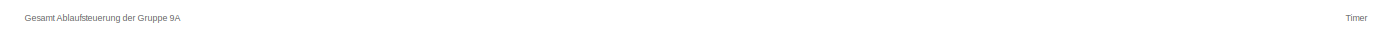
[diagram: root canvas - part 1/4, top left region]
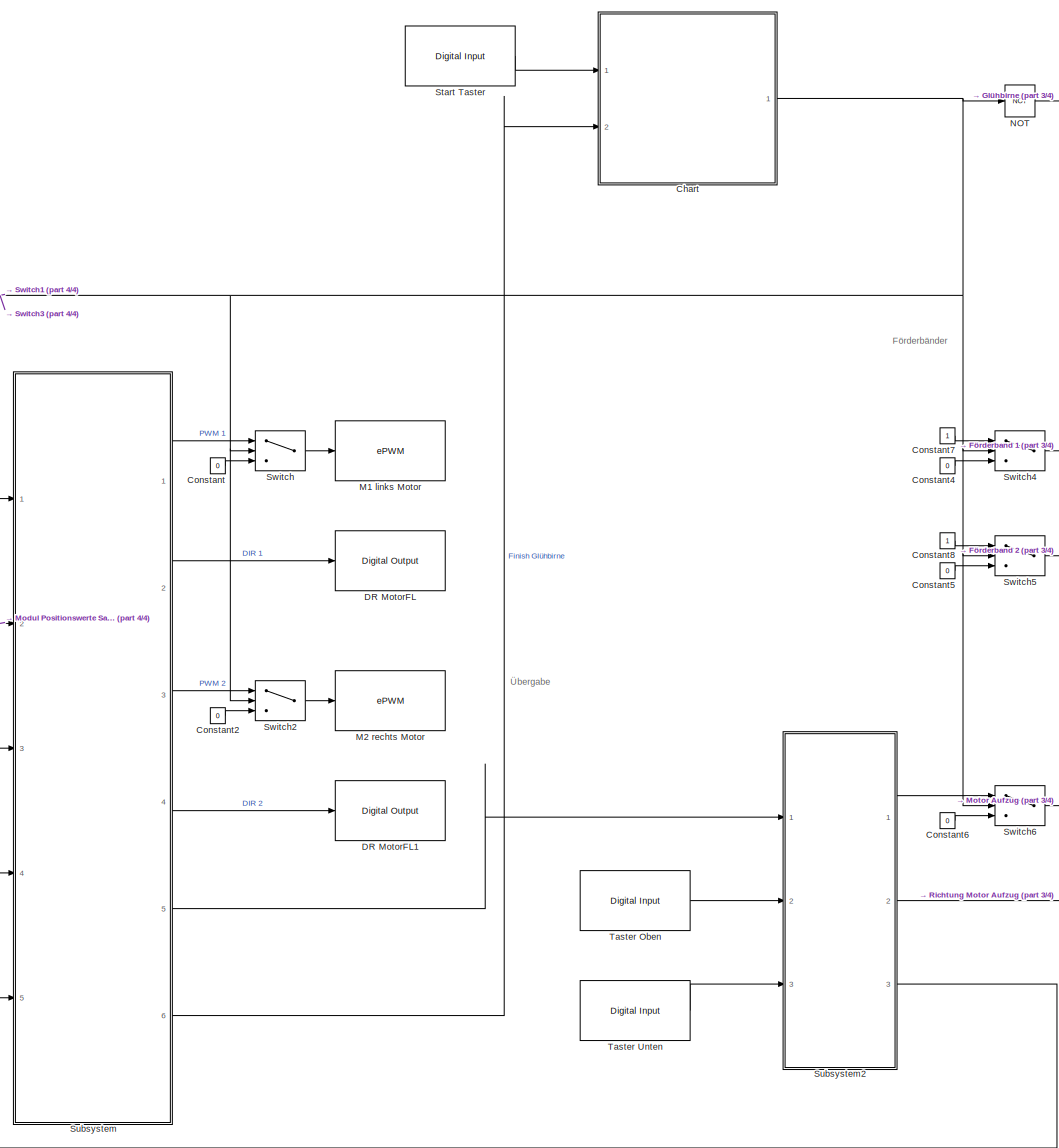
[diagram: root canvas - part 2/4, right side, full height]
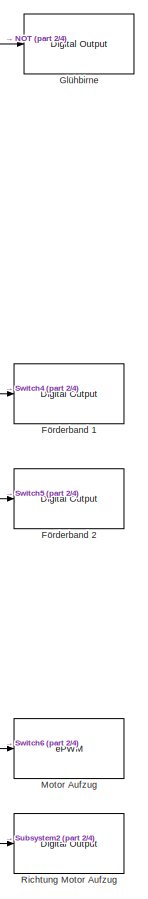
[diagram: root canvas - part 3/4, middle right region]
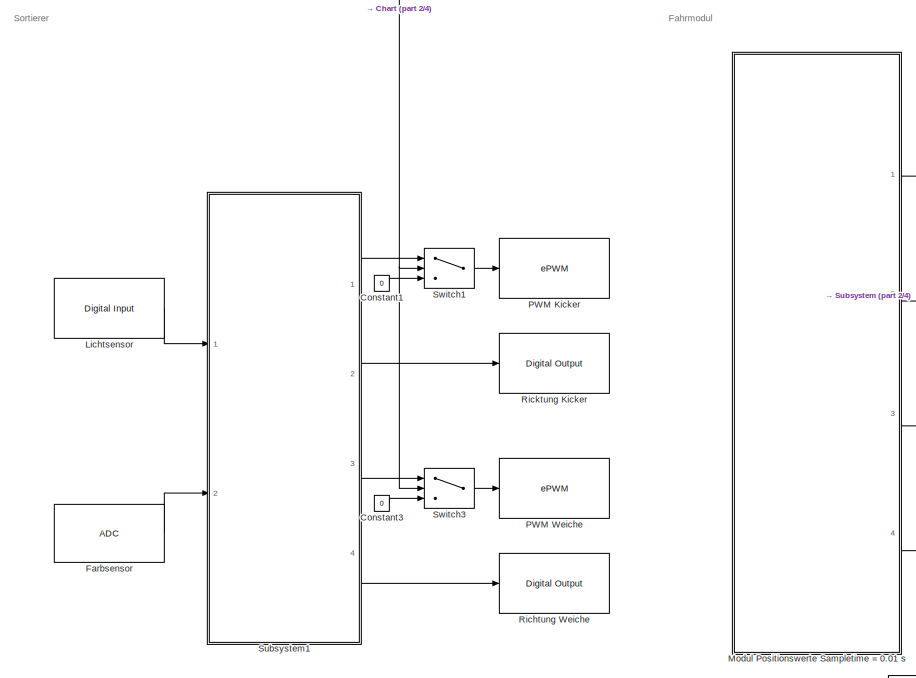
[diagram: root canvas - part 4/4, middle left region]
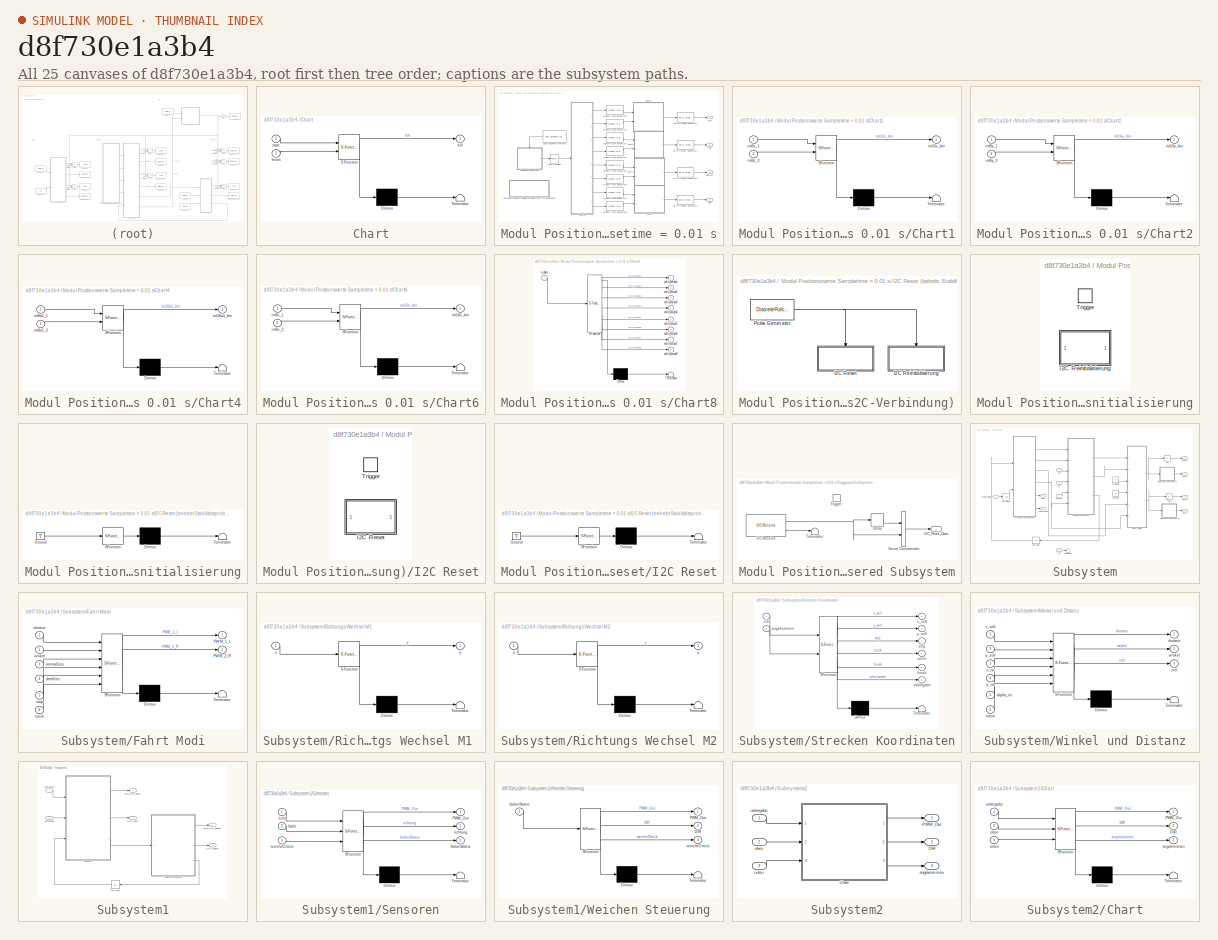
[diagram: thumbnail index - all 25 canvases of the model, root first then tree order]
MODEL slx_d8f730e1a3b4
KIND model
CONFIG AbsTol = auto
CONFIG EnableMultiTasking = on
CONFIG FixedStep = auto
CONFIG MaxStep = auto
CONFIG MinStep = auto
CONFIG RelTol = 1e-3
CONFIG SampleTimeConstraint = Unconstrained
CONFIG Solver = FixedStepDiscrete
CONFIG SolverName = FixedStepDiscrete
CONFIG StartTime = 0.0
CONFIG StopTime = 10.0
BLOCK [SubSystem] Chart
  ErrorFcn = Stateflow.Translate.translate
  PermitHierarchicalResolution = ExplicitOnly
  Ports = [2, 1]
  RequestExecContextInheritance = off
  SFBlockType = Chart
  TreatAsAtomicUnit = on
BLOCK [Demux] Chart/ Demux 
  Outputs = 1
  Ports = [1, 1]
BLOCK [S-Function] Chart/ SFunction 
  EnableBusSupport = on
  FunctionName = sf_sfun
  PortCounts = [2 2]
  Ports = [2, 2]
  SFcnIsStateOwnerBlock = off
  SFunctionDeploymentMode = off
  Tag = Stateflow S-Function MSupGesamt 3
BLOCK [Terminator] Chart/ Terminator 
BLOCK [Inport] Chart/finish
  IconDisplay = Port number
  Port = 2
BLOCK [Outport] Chart/kill
  IconDisplay = Port number
BLOCK [Inport] Chart/start
  IconDisplay = Port number
BLOCK [Constant] Constant
  Value = 0
BLOCK [Constant] Constant1
  Value = 0
BLOCK [Constant] Constant2
  Value = 0
BLOCK [Constant] Constant3
  Value = 0
BLOCK [Constant] Constant4
  Value = 0
BLOCK [Constant] Constant5
  Value = 0
BLOCK [Constant] Constant6
  Value = 0
BLOCK [Constant] Constant7
BLOCK [Constant] Constant8
BLOCK [Reference] DR MotorFL  REF=c2833xlib/Digital Output
  Ports = [1]
  SourceBlock = c2833xlib/Digital Output
  SourceProductBaseCode = TIC2000
  SourceProductName = Embedded Coder Support Package for Texas Instruments C2000 Processors
  SourceType = C2833x GPIO Digital Output
  UserDataPersistent = on
BLOCK [Reference] DR MotorFL1  REF=c2833xlib/Digital Output
  Ports = [1]
  SourceBlock = c2833xlib/Digital Output
  SourceProductBaseCode = TIC2000
  SourceProductName = Embedded Coder Support Package for Texas Instruments C2000 Processors
  SourceType = C2833x GPIO Digital Output
  UserDataPersistent = on
BLOCK [Reference] Farbsensor  REF=c280xlib/ADC
  Ports = [0, 1]
  SourceBlock = c280xlib/ADC
  SourceProductBaseCode = TIC2000
  SourceProductName = Embedded Coder Support Package for Texas Instruments C2000 Processors
  SourceType = C280x/C2833x ADC
  UserDataPersistent = on
BLOCK [Reference] Förderband 1  REF=c2833xlib/Digital Output
  Ports = [1]
  SourceBlock = c2833xlib/Digital Output
  SourceProductBaseCode = TIC2000
  SourceProductName = Embedded Coder Support Package for Texas Instruments C2000 Processors
  SourceType = C2833x GPIO Digital Output
  UserDataPersistent = on
BLOCK [Reference] Förderband 2  REF=c2833xlib/Digital Output
  Ports = [1]
  SourceBlock = c2833xlib/Digital Output
  SourceProductBaseCode = TIC2000
  SourceProductName = Embedded Coder Support Package for Texas Instruments C2000 Processors
  SourceType = C2833x GPIO Digital Output
  UserDataPersistent = on
BLOCK [Reference] Glühbirne  REF=c2833xlib/Digital Output
  Ports = [1]
  SourceBlock = c2833xlib/Digital Output
  SourceProductBaseCode = TIC2000
  SourceProductName = Embedded Coder Support Package for Texas Instruments C2000 Processors
  SourceType = C2833x GPIO Digital Output
  UserDataPersistent = on
BLOCK [Reference] Lichtsensor  REF=c280xlib/Digital Input
  Ports = [0, 1]
  SourceBlock = c280xlib/Digital Input
  SourceProductBaseCode = TIC2000
  SourceProductName = Embedded Coder Support Package for Texas Instruments C2000 Processors
  SourceType = C280x GPIO Digital Input
  UserDataPersistent = on
BLOCK [Reference] M1 links Motor  REF=c280xlib/ePWM
  Ports = [1]
  SourceBlock = c280xlib/ePWM
  SourceProductBaseCode = TIC2000
  SourceProductName = Embedded Coder Support Package for Texas Instruments C2000 Processors
  SourceType = C280x/C2833x ePWM
BLOCK [Reference] M2 rechts Motor  REF=c280xlib/ePWM
  Ports = [1]
  SourceBlock = c280xlib/ePWM
  SourceProductBaseCode = TIC2000
  SourceProductName = Embedded Coder Support Package for Texas Instruments C2000 Processors
  SourceType = C280x/C2833x ePWM
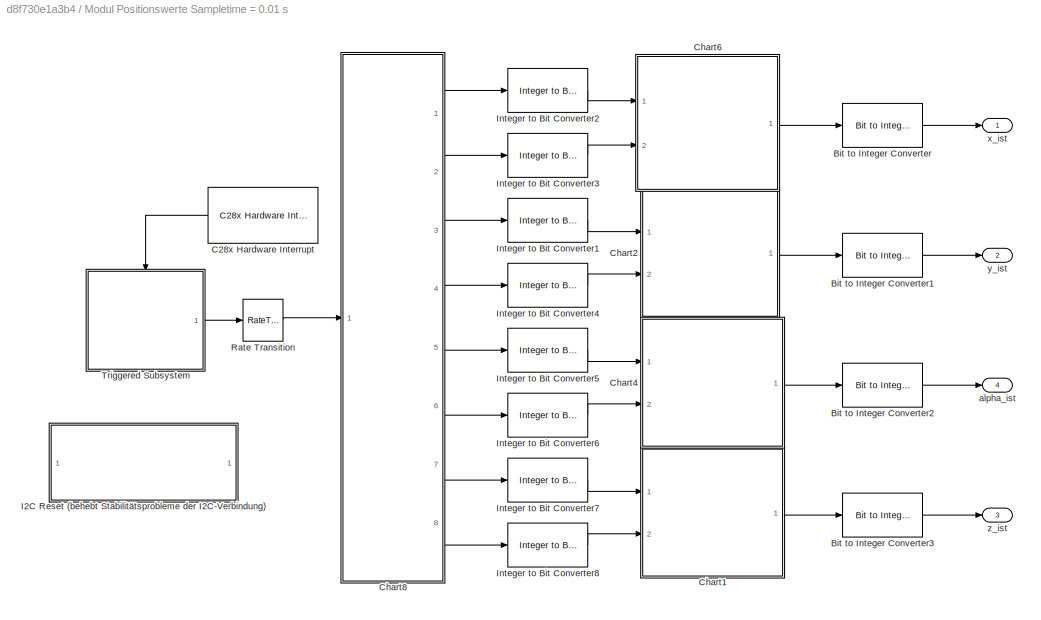
BLOCK [SubSystem] Modul Positionswerte Sampletime = 0.01 s
  Ports = [0, 4]
  RequestExecContextInheritance = off
BLOCK [Reference] Modul Positionswerte Sampletime = 0.01 s/Bit to Integer Converter  REF=commutil2/Bit to Integer
Converter
  Ports = [1, 1]
  SourceBlock = commutil2/Bit to Integer\nConverter
  SourceProductBaseCode = CM
  SourceProductName = Communications Toolbox
  SourceType = Bit to Integer Converter
BLOCK [Reference] Modul Positionswerte Sampletime = 0.01 s/Bit to Integer Converter1  REF=commutil2/Bit to Integer
Converter
  Ports = [1, 1]
  SourceBlock = commutil2/Bit to Integer\nConverter
  SourceProductBaseCode = CM
  SourceProductName = Communications Toolbox
  SourceType = Bit to Integer Converter
BLOCK [Reference] Modul Positionswerte Sampletime = 0.01 s/Bit to Integer Converter2  REF=commutil2/Bit to Integer
Converter
  Ports = [1, 1]
  SourceBlock = commutil2/Bit to Integer\nConverter
  SourceProductBaseCode = CM
  SourceProductName = Communications Toolbox
  SourceType = Bit to Integer Converter
BLOCK [Reference] Modul Positionswerte Sampletime = 0.01 s/Bit to Integer Converter3  REF=commutil2/Bit to Integer
Converter
  Ports = [1, 1]
  SourceBlock = commutil2/Bit to Integer\nConverter
  SourceProductBaseCode = CM
  SourceProductName = Communications Toolbox
  SourceType = Bit to Integer Converter
BLOCK [Reference] Modul Positionswerte Sampletime = 0.01 s/C28x Hardware Interrupt  REF=c2000lib/Scheduling/C28x Hardware Interrupt
  Ports = [0, 1]
  SourceBlock = c2000lib/Scheduling/C28x Hardware Interrupt
  SourceProductBaseCode = TIC2000
  SourceProductName = Embedded Coder Support Package for Texas Instruments C2000 Processors
  SourceType = C28x Interrupt Block
BLOCK [SubSystem] Modul Positionswerte Sampletime = 0.01 s/Chart1
  ErrorFcn = Stateflow.Translate.translate
  PermitHierarchicalResolution = ExplicitOnly
  Ports = [2, 1]
  RequestExecContextInheritance = off
  SFBlockType = Chart
  TreatAsAtomicUnit = on
BLOCK [Demux] Modul Positionswerte Sampletime = 0.01 s/Chart1/ Demux 
  Outputs = 1
  Ports = [1, 1]
BLOCK [S-Function] Modul Positionswerte Sampletime = 0.01 s/Chart1/ SFunction 
  EnableBusSupport = on
  FunctionName = sf_sfun
  PortCounts = [2 2]
  Ports = [2, 2]
  SFcnIsStateOwnerBlock = off
  SFunctionDeploymentMode = off
  Tag = Stateflow S-Function MSupGesamt 11
BLOCK [Terminator] Modul Positionswerte Sampletime = 0.01 s/Chart1/ Terminator 
BLOCK [Outport] Modul Positionswerte Sampletime = 0.01 s/Chart1/int16z_bin
  IconDisplay = Port number
BLOCK [Inport] Modul Positionswerte Sampletime = 0.01 s/Chart1/int8z_1
  IconDisplay = Port number
BLOCK [Inport] Modul Positionswerte Sampletime = 0.01 s/Chart1/int8z_2
  IconDisplay = Port number
  Port = 2
BLOCK [SubSystem] Modul Positionswerte Sampletime = 0.01 s/Chart2
  ErrorFcn = Stateflow.Translate.translate
  PermitHierarchicalResolution = ExplicitOnly
  Ports = [2, 1]
  RequestExecContextInheritance = off
  SFBlockType = Chart
  TreatAsAtomicUnit = on
BLOCK [Demux] Modul Positionswerte Sampletime = 0.01 s/Chart2/ Demux 
  Outputs = 1
  Ports = [1, 1]
BLOCK [S-Function] Modul Positionswerte Sampletime = 0.01 s/Chart2/ SFunction 
  EnableBusSupport = on
  FunctionName = sf_sfun
  PortCounts = [2 2]
  Ports = [2, 2]
  SFcnIsStateOwnerBlock = off
  SFunctionDeploymentMode = off
  Tag = Stateflow S-Function MSupGesamt 13
BLOCK [Terminator] Modul Positionswerte Sampletime = 0.01 s/Chart2/ Terminator 
BLOCK [Outport] Modul Positionswerte Sampletime = 0.01 s/Chart2/int16y_bin
  IconDisplay = Port number
BLOCK [Inport] Modul Positionswerte Sampletime = 0.01 s/Chart2/int8y_1
  IconDisplay = Port number
BLOCK [Inport] Modul Positionswerte Sampletime = 0.01 s/Chart2/int8y_2
  IconDisplay = Port number
  Port = 2
BLOCK [SubSystem] Modul Positionswerte Sampletime = 0.01 s/Chart4
  ErrorFcn = Stateflow.Translate.translate
  PermitHierarchicalResolution = ExplicitOnly
  Ports = [2, 1]
  RequestExecContextInheritance = off
  SFBlockType = Chart
  TreatAsAtomicUnit = on
BLOCK [Demux] Modul Positionswerte Sampletime = 0.01 s/Chart4/ Demux 
  Outputs = 1
  Ports = [1, 1]
BLOCK [S-Function] Modul Positionswerte Sampletime = 0.01 s/Chart4/ SFunction 
  EnableBusSupport = on
  FunctionName = sf_sfun
  PortCounts = [2 2]
  Ports = [2, 2]
  SFcnIsStateOwnerBlock = off
  SFunctionDeploymentMode = off
  Tag = Stateflow S-Function MSupGesamt 14
BLOCK [Terminator] Modul Positionswerte Sampletime = 0.01 s/Chart4/ Terminator 
BLOCK [Outport] Modul Positionswerte Sampletime = 0.01 s/Chart4/int16a1_bin
  IconDisplay = Port number
BLOCK [Inport] Modul Positionswerte Sampletime = 0.01 s/Chart4/int8a1_1
  IconDisplay = Port number
BLOCK [Inport] Modul Positionswerte Sampletime = 0.01 s/Chart4/int8a1_2
  IconDisplay = Port number
  Port = 2
BLOCK [SubSystem] Modul Positionswerte Sampletime = 0.01 s/Chart6
  ErrorFcn = Stateflow.Translate.translate
  PermitHierarchicalResolution = ExplicitOnly
  Ports = [2, 1]
  RequestExecContextInheritance = off
  SFBlockType = Chart
  TreatAsAtomicUnit = on
BLOCK [Demux] Modul Positionswerte Sampletime = 0.01 s/Chart6/ Demux 
  Outputs = 1
  Ports = [1, 1]
BLOCK [S-Function] Modul Positionswerte Sampletime = 0.01 s/Chart6/ SFunction 
  EnableBusSupport = on
  FunctionName = sf_sfun
  PortCounts = [2 2]
  Ports = [2, 2]
  SFcnIsStateOwnerBlock = off
  SFunctionDeploymentMode = off
  Tag = Stateflow S-Function MSupGesamt 16
BLOCK [Terminator] Modul Positionswerte Sampletime = 0.01 s/Chart6/ Terminator 
BLOCK [Outport] Modul Positionswerte Sampletime = 0.01 s/Chart6/int16x_bin
  IconDisplay = Port number
BLOCK [Inport] Modul Positionswerte Sampletime = 0.01 s/Chart6/int8x_1
  IconDisplay = Port number
BLOCK [Inport] Modul Positionswerte Sampletime = 0.01 s/Chart6/int8x_2
  IconDisplay = Port number
  Port = 2
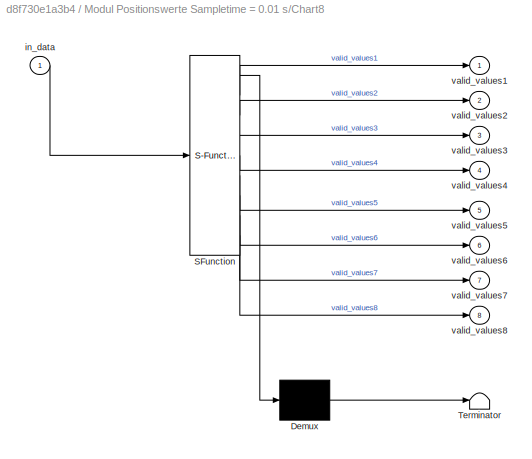
BLOCK [SubSystem] Modul Positionswerte Sampletime = 0.01 s/Chart8
  ErrorFcn = Stateflow.Translate.translate
  PermitHierarchicalResolution = ExplicitOnly
  Ports = [1, 8]
  RequestExecContextInheritance = off
  SFBlockType = Chart
  TreatAsAtomicUnit = on
BLOCK [Demux] Modul Positionswerte Sampletime = 0.01 s/Chart8/ Demux 
  Outputs = 1
  Ports = [1, 1]
BLOCK [S-Function] Modul Positionswerte Sampletime = 0.01 s/Chart8/ SFunction 
  EnableBusSupport = on
  FunctionName = sf_sfun
  PortCounts = [1 9]
  Ports = [1, 9]
  SFcnIsStateOwnerBlock = off
  SFunctionDeploymentMode = off
  Tag = Stateflow S-Function MSupGesamt 17
BLOCK [Terminator] Modul Positionswerte Sampletime = 0.01 s/Chart8/ Terminator 
BLOCK [Inport] Modul Positionswerte Sampletime = 0.01 s/Chart8/in_data
  IconDisplay = Port number
BLOCK [Outport] Modul Positionswerte Sampletime = 0.01 s/Chart8/valid_values1
  IconDisplay = Port number
BLOCK [Outport] Modul Positionswerte Sampletime = 0.01 s/Chart8/valid_values2
  IconDisplay = Port number
  Port = 2
BLOCK [Outport] Modul Positionswerte Sampletime = 0.01 s/Chart8/valid_values3
  IconDisplay = Port number
  Port = 3
BLOCK [Outport] Modul Positionswerte Sampletime = 0.01 s/Chart8/valid_values4
  IconDisplay = Port number
  Port = 4
BLOCK [Outport] Modul Positionswerte Sampletime = 0.01 s/Chart8/valid_values5
  IconDisplay = Port number
  Port = 5
BLOCK [Outport] Modul Positionswerte Sampletime = 0.01 s/Chart8/valid_values6
  IconDisplay = Port number
  Port = 6
BLOCK [Outport] Modul Positionswerte Sampletime = 0.01 s/Chart8/valid_values7
  IconDisplay = Port number
  Port = 7
BLOCK [Outport] Modul Positionswerte Sampletime = 0.01 s/Chart8/valid_values8
  IconDisplay = Port number
  Port = 8
BLOCK [SubSystem] Modul Positionswerte Sampletime = 0.01 s/I2C Reset (behebt Stabilitätsprobleme der I2C-Verbindung)
  Ports = []
  RequestExecContextInheritance = off
BLOCK [SubSystem] Modul Positionswerte Sampletime = 0.01 s/I2C Reset (behebt Stabilitätsprobleme der I2C-Verbindung)/I2C Reinitialisierung
  Ports = [0, 0, 0, 1]
  RequestExecContextInheritance = off
  TreatAsAtomicUnit = on
BLOCK [SubSystem] Modul Positionswerte Sampletime = 0.01 s/I2C Reset (behebt Stabilitätsprobleme der I2C-Verbindung)/I2C Reinitialisierung/I2C Reinitialisierung
  ErrorFcn = Stateflow.Translate.translate
  PermitHierarchicalResolution = ExplicitOnly
  Ports = []
  RequestExecContextInheritance = off
  SFBlockType = MATLAB Function
  TreatAsAtomicUnit = on
BLOCK [Demux] Modul Positionswerte Sampletime = 0.01 s/I2C Reset (behebt Stabilitätsprobleme der I2C-Verbindung)/I2C Reinitialisierung/I2C Reinitialisierung/ Demux 
  Outputs = 1
  Ports = [1, 1]
BLOCK [Ground] Modul Positionswerte Sampletime = 0.01 s/I2C Reset (behebt Stabilitätsprobleme der I2C-Verbindung)/I2C Reinitialisierung/I2C Reinitialisierung/ Ground 
BLOCK [S-Function] Modul Positionswerte Sampletime = 0.01 s/I2C Reset (behebt Stabilitätsprobleme der I2C-Verbindung)/I2C Reinitialisierung/I2C Reinitialisierung/ SFunction 
  EnableBusSupport = on
  FunctionName = sf_sfun
  PortCounts = [1 1]
  Ports = [1, 1]
  SFcnIsStateOwnerBlock = off
  SFunctionDeploymentMode = off
  Tag = Stateflow S-Function MSupGesamt 24
BLOCK [Terminator] Modul Positionswerte Sampletime = 0.01 s/I2C Reset (behebt Stabilitätsprobleme der I2C-Verbindung)/I2C Reinitialisierung/I2C Reinitialisierung/ Terminator 
BLOCK [TriggerPort] Modul Positionswerte Sampletime = 0.01 s/I2C Reset (behebt Stabilitätsprobleme der I2C-Verbindung)/I2C Reinitialisierung/Trigger
  Ports = []
  StatesWhenEnabling = held
  TriggerType = falling
  VariantControl = (inherit)
BLOCK [SubSystem] Modul Positionswerte Sampletime = 0.01 s/I2C Reset (behebt Stabilitätsprobleme der I2C-Verbindung)/I2C Reset
  Ports = [0, 0, 0, 1]
  RequestExecContextInheritance = off
  TreatAsAtomicUnit = on
BLOCK [SubSystem] Modul Positionswerte Sampletime = 0.01 s/I2C Reset (behebt Stabilitätsprobleme der I2C-Verbindung)/I2C Reset/I2C Reset
  ErrorFcn = Stateflow.Translate.translate
  PermitHierarchicalResolution = ExplicitOnly
  Ports = []
  RequestExecContextInheritance = off
  SFBlockType = MATLAB Function
  TreatAsAtomicUnit = on
BLOCK [Demux] Modul Positionswerte Sampletime = 0.01 s/I2C Reset (behebt Stabilitätsprobleme der I2C-Verbindung)/I2C Reset/I2C Reset/ Demux 
  Outputs = 1
  Ports = [1, 1]
BLOCK [Ground] Modul Positionswerte Sampletime = 0.01 s/I2C Reset (behebt Stabilitätsprobleme der I2C-Verbindung)/I2C Reset/I2C Reset/ Ground 
BLOCK [S-Function] Modul Positionswerte Sampletime = 0.01 s/I2C Reset (behebt Stabilitätsprobleme der I2C-Verbindung)/I2C Reset/I2C Reset/ SFunction 
  EnableBusSupport = on
  FunctionName = sf_sfun
  PortCounts = [1 1]
  Ports = [1, 1]
  SFcnIsStateOwnerBlock = off
  SFunctionDeploymentMode = off
  Tag = Stateflow S-Function MSupGesamt 21
BLOCK [Terminator] Modul Positionswerte Sampletime = 0.01 s/I2C Reset (behebt Stabilitätsprobleme der I2C-Verbindung)/I2C Reset/I2C Reset/ Terminator 
BLOCK [TriggerPort] Modul Positionswerte Sampletime = 0.01 s/I2C Reset (behebt Stabilitätsprobleme der I2C-Verbindung)/I2C Reset/Trigger
  Ports = []
  StatesWhenEnabling = held
  VariantControl = (inherit)
BLOCK [DiscretePulseGenerator] Modul Positionswerte Sampletime = 0.01 s/I2C Reset (behebt Stabilitätsprobleme der I2C-Verbindung)/Pulse Generator
  Period = 250
  Ports = [0, 1]
  SampleTime = 0.01
BLOCK [Reference] Modul Positionswerte Sampletime = 0.01 s/Integer to Bit Converter1  REF=commutil2/Integer to Bit
Converter
  Ports = [1, 1]
  SourceBlock = commutil2/Integer to Bit\nConverter
  SourceProductBaseCode = CM
  SourceProductName = Communications Toolbox
  SourceType = Integer to Bit Converter
BLOCK [Reference] Modul Positionswerte Sampletime = 0.01 s/Integer to Bit Converter2  REF=commutil2/Integer to Bit
Converter
  Ports = [1, 1]
  SourceBlock = commutil2/Integer to Bit\nConverter
  SourceProductBaseCode = CM
  SourceProductName = Communications Toolbox
  SourceType = Integer to Bit Converter
BLOCK [Reference] Modul Positionswerte Sampletime = 0.01 s/Integer to Bit Converter3  REF=commutil2/Integer to Bit
Converter
  Ports = [1, 1]
  SourceBlock = commutil2/Integer to Bit\nConverter
  SourceProductBaseCode = CM
  SourceProductName = Communications Toolbox
  SourceType = Integer to Bit Converter
BLOCK [Reference] Modul Positionswerte Sampletime = 0.01 s/Integer to Bit Converter4  REF=commutil2/Integer to Bit
Converter
  Ports = [1, 1]
  SourceBlock = commutil2/Integer to Bit\nConverter
  SourceProductBaseCode = CM
  SourceProductName = Communications Toolbox
  SourceType = Integer to Bit Converter
BLOCK [Reference] Modul Positionswerte Sampletime = 0.01 s/Integer to Bit Converter5  REF=commutil2/Integer to Bit
Converter
  Ports = [1, 1]
  SourceBlock = commutil2/Integer to Bit\nConverter
  SourceProductBaseCode = CM
  SourceProductName = Communications Toolbox
  SourceType = Integer to Bit Converter
BLOCK [Reference] Modul Positionswerte Sampletime = 0.01 s/Integer to Bit Converter6  REF=commutil2/Integer to Bit
Converter
  Ports = [1, 1]
  SourceBlock = commutil2/Integer to Bit\nConverter
  SourceProductBaseCode = CM
  SourceProductName = Communications Toolbox
  SourceType = Integer to Bit Converter
BLOCK [Reference] Modul Positionswerte Sampletime = 0.01 s/Integer to Bit Converter7  REF=commutil2/Integer to Bit
Converter
  Ports = [1, 1]
  SourceBlock = commutil2/Integer to Bit\nConverter
  SourceProductBaseCode = CM
  SourceProductName = Communications Toolbox
  SourceType = Integer to Bit Converter
BLOCK [Reference] Modul Positionswerte Sampletime = 0.01 s/Integer to Bit Converter8  REF=commutil2/Integer to Bit
Converter
  Ports = [1, 1]
  SourceBlock = commutil2/Integer to Bit\nConverter
  SourceProductBaseCode = CM
  SourceProductName = Communications Toolbox
  SourceType = Integer to Bit Converter
BLOCK [RateTransition] Modul Positionswerte Sampletime = 0.01 s/Rate Transition
  Deterministic = off
  OutPortSampleTime = 0.01
BLOCK [SubSystem] Modul Positionswerte Sampletime = 0.01 s/Triggered Subsystem
  Ports = [0, 1, 0, 1]
  RequestExecContextInheritance = off
  TreatAsAtomicUnit = on
BLOCK [Delay] Modul Positionswerte Sampletime = 0.01 s/Triggered Subsystem/Delay
  DelayLength = 1
  InitialCondition = 0
  InputPortMap = u0
  Ports = [1, 1]
BLOCK [Reference] Modul Positionswerte Sampletime = 0.01 s/Triggered Subsystem/I2C Receive  REF=c280xlib/I2C Receive
  Ports = [0, 2]
  SourceBlock = c280xlib/I2C Receive
  SourceProductBaseCode = TIC2000
  SourceProductName = Embedded Coder Support Package for Texas Instruments C2000 Processors
  SourceType = C28x I2C Receive
BLOCK [Outport] Modul Positionswerte Sampletime = 0.01 s/Triggered Subsystem/I2C_Read_Data
  IconDisplay = Port number
BLOCK [Terminator] Modul Positionswerte Sampletime = 0.01 s/Triggered Subsystem/Terminator
BLOCK [TriggerPort] Modul Positionswerte Sampletime = 0.01 s/Triggered Subsystem/Trigger
  Ports = []
  StatesWhenEnabling = held
  TriggerType = function-call
  VariantControl = (inherit)
BLOCK [Concatenate] Modul Positionswerte Sampletime = 0.01 s/Triggered Subsystem/Vector Concatenate
  Ports = [2, 1]
BLOCK [Outport] Modul Positionswerte Sampletime = 0.01 s/alpha_ist
  IconDisplay = Port number
  Port = 4
BLOCK [Outport] Modul Positionswerte Sampletime = 0.01 s/x_ist
  IconDisplay = Port number
BLOCK [Outport] Modul Positionswerte Sampletime = 0.01 s/y_ist
  IconDisplay = Port number
  Port = 2
BLOCK [Outport] Modul Positionswerte Sampletime = 0.01 s/z_ist
  IconDisplay = Port number
  Port = 3
BLOCK [Reference] Motor Aufzug  REF=c280xlib/ePWM
  Ports = [1]
  SourceBlock = c280xlib/ePWM
  SourceProductBaseCode = TIC2000
  SourceProductName = Embedded Coder Support Package for Texas Instruments C2000 Processors
  SourceType = C280x/C2833x ePWM
BLOCK [Logic] NOT
  AllPortsSameDT = off
  IconShape = distinctive
  Operator = NOT
  OutDataTypeStr = boolean
  Ports = [1, 1]
BLOCK [Reference] PWM Kicker  REF=c280xlib/ePWM
  Ports = [1]
  SourceBlock = c280xlib/ePWM
  SourceProductBaseCode = TIC2000
  SourceProductName = Embedded Coder Support Package for Texas Instruments C2000 Processors
  SourceType = C280x/C2833x ePWM
BLOCK [Reference] PWM Weiche  REF=c280xlib/ePWM
  Ports = [1]
  SourceBlock = c280xlib/ePWM
  SourceProductBaseCode = TIC2000
  SourceProductName = Embedded Coder Support Package for Texas Instruments C2000 Processors
  SourceType = C280x/C2833x ePWM
BLOCK [Reference] Richtung Motor Aufzug  REF=c2833xlib/Digital Output
  Ports = [1]
  SourceBlock = c2833xlib/Digital Output
  SourceProductBaseCode = TIC2000
  SourceProductName = Embedded Coder Support Package for Texas Instruments C2000 Processors
  SourceType = C2833x GPIO Digital Output
  UserDataPersistent = on
BLOCK [Reference] Richtung Weiche  REF=c2833xlib/Digital Output
  Ports = [1]
  SourceBlock = c2833xlib/Digital Output
  SourceProductBaseCode = TIC2000
  SourceProductName = Embedded Coder Support Package for Texas Instruments C2000 Processors
  SourceType = C2833x GPIO Digital Output
  UserDataPersistent = on
BLOCK [Reference] Ricktung Kicker  REF=c2833xlib/Digital Output
  Ports = [1]
  SourceBlock = c2833xlib/Digital Output
  SourceProductBaseCode = TIC2000
  SourceProductName = Embedded Coder Support Package for Texas Instruments C2000 Processors
  SourceType = C2833x GPIO Digital Output
  UserDataPersistent = on
BLOCK [Reference] Start Taster  REF=c2833xlib/Digital Input
  Ports = [0, 1]
  SourceBlock = c2833xlib/Digital Input
  SourceProductBaseCode = TIC2000
  SourceProductName = Embedded Coder Support Package for Texas Instruments C2000 Processors
  SourceType = C2833x GPIO Digital Input
  UserDataPersistent = on
BLOCK [SubSystem] Subsystem
  Ports = [5, 6]
  RequestExecContextInheritance = off
BLOCK [Abs] Subsystem/Abs
  SaturateOnIntegerOverflow = off
BLOCK [Abs] Subsystem/Abs1
  SaturateOnIntegerOverflow = off
BLOCK [Outport] Subsystem/DIR 1 
  IconDisplay = Port number
  Port = 2
BLOCK [Outport] Subsystem/DIR 2 
  IconDisplay = Port number
  Port = 4
BLOCK [SubSystem] Subsystem/Fahrt Modi
  ErrorFcn = Stateflow.Translate.translate
  PermitHierarchicalResolution = ExplicitOnly
  Ports = [6, 2]
  RequestExecContextInheritance = off
  SFBlockType = Chart
  TreatAsAtomicUnit = on
BLOCK [Demux] Subsystem/Fahrt Modi/ Demux 
  Outputs = 1
  Ports = [1, 1]
BLOCK [S-Function] Subsystem/Fahrt Modi/ SFunction 
  EnableBusSupport = on
  FunctionName = sf_sfun
  PortCounts = [6 3]
  Ports = [6, 3]
  SFcnIsStateOwnerBlock = off
  SFunctionDeploymentMode = off
  Tag = Stateflow S-Function MSupGesamt 2
BLOCK [Terminator] Subsystem/Fahrt Modi/ Terminator 
BLOCK [Outport] Subsystem/Fahrt Modi/PWM_1_L
  IconDisplay = Port number
BLOCK [Outport] Subsystem/Fahrt Modi/PWM_2_R
  IconDisplay = Port number
  Port = 2
BLOCK [Inport] Subsystem/Fahrt Modi/distanz
  IconDisplay = Port number
BLOCK [Inport] Subsystem/Fahrt Modi/drehGes
  IconDisplay = Port number
  Port = 4
BLOCK [Inport] Subsystem/Fahrt Modi/normalGes
  IconDisplay = Port number
  Port = 3
BLOCK [Inport] Subsystem/Fahrt Modi/rueck
  IconDisplay = Port number
  Port = 6
BLOCK [Inport] Subsystem/Fahrt Modi/stop
  IconDisplay = Port number
  Port = 5
BLOCK [Inport] Subsystem/Fahrt Modi/winkel
  IconDisplay = Port number
  Port = 2
BLOCK [Outport] Subsystem/Finish
  IconDisplay = Port number
  Port = 6
BLOCK [Outport] Subsystem/PWM 1
  IconDisplay = Port number
BLOCK [Outport] Subsystem/PWM 2
  IconDisplay = Port number
  Port = 3
BLOCK [SubSystem] Subsystem/Richtungs Wechsel M1 
  ErrorFcn = Stateflow.Translate.translate
  PermitHierarchicalResolution = ExplicitOnly
  Ports = [1, 1]
  RequestExecContextInheritance = off
  SFBlockType = MATLAB Function
  TreatAsAtomicUnit = on
BLOCK [Demux] Subsystem/Richtungs Wechsel M1 / Demux 
  Outputs = 1
  Ports = [1, 1]
BLOCK [S-Function] Subsystem/Richtungs Wechsel M1 / SFunction 
  EnableBusSupport = on
  FunctionName = sf_sfun
  PortCounts = [1 2]
  Ports = [1, 2]
  SFcnIsStateOwnerBlock = off
  SFunctionDeploymentMode = off
  Tag = Stateflow S-Function MSupGesamt 4
BLOCK [Terminator] Subsystem/Richtungs Wechsel M1 / Terminator 
BLOCK [Inport] Subsystem/Richtungs Wechsel M1 /u
  IconDisplay = Port number
BLOCK [Outport] Subsystem/Richtungs Wechsel M1 /y
  IconDisplay = Port number
BLOCK [SubSystem] Subsystem/Richtungs Wechsel M2
  ErrorFcn = Stateflow.Translate.translate
  PermitHierarchicalResolution = ExplicitOnly
  Ports = [1, 1]
  RequestExecContextInheritance = off
  SFBlockType = MATLAB Function
  TreatAsAtomicUnit = on
BLOCK [Demux] Subsystem/Richtungs Wechsel M2/ Demux 
  Outputs = 1
  Ports = [1, 1]
BLOCK [S-Function] Subsystem/Richtungs Wechsel M2/ SFunction 
  EnableBusSupport = on
  FunctionName = sf_sfun
  PortCounts = [1 2]
  Ports = [1, 2]
  SFcnIsStateOwnerBlock = off
  SFunctionDeploymentMode = off
  Tag = Stateflow S-Function MSupGesamt 5
BLOCK [Terminator] Subsystem/Richtungs Wechsel M2/ Terminator 
BLOCK [Inport] Subsystem/Richtungs Wechsel M2/u
  IconDisplay = Port number
BLOCK [Outport] Subsystem/Richtungs Wechsel M2/y
  IconDisplay = Port number
BLOCK [SubSystem] Subsystem/Strecken Koordinaten
  ErrorFcn = Stateflow.Translate.translate
  PermitHierarchicalResolution = ExplicitOnly
  Ports = [2, 6]
  RequestExecContextInheritance = off
  SFBlockType = Chart
  TreatAsAtomicUnit = on
BLOCK [Demux] Subsystem/Strecken Koordinaten/ Demux 
  Outputs = 1
  Ports = [1, 1]
BLOCK [S-Function] Subsystem/Strecken Koordinaten/ SFunction 
  EnableBusSupport = on
  FunctionName = sf_sfun
  PortCounts = [2 7]
  Ports = [2, 7]
  SFcnIsStateOwnerBlock = off
  SFunctionDeploymentMode = off
  Tag = Stateflow S-Function MSupGesamt 6
BLOCK [Terminator] Subsystem/Strecken Koordinaten/ Terminator 
BLOCK [Inport] Subsystem/Strecken Koordinaten/angekommen
  IconDisplay = Port number
  Port = 2
BLOCK [Outport] Subsystem/Strecken Koordinaten/finish
  IconDisplay = Port number
  Port = 5
BLOCK [Outport] Subsystem/Strecken Koordinaten/rueck
  IconDisplay = Port number
  Port = 4
BLOCK [Outport] Subsystem/Strecken Koordinaten/stop
  IconDisplay = Port number
  Port = 3
BLOCK [Outport] Subsystem/Strecken Koordinaten/uebergabe
  IconDisplay = Port number
  Port = 6
BLOCK [Outport] Subsystem/Strecken Koordinaten/x_soll
  IconDisplay = Port number
BLOCK [Outport] Subsystem/Strecken Koordinaten/y_soll
  IconDisplay = Port number
  Port = 2
BLOCK [Inport] Subsystem/Strecken Koordinaten/ziel
  IconDisplay = Port number
BLOCK [Terminator] Subsystem/Terminator
BLOCK [UnitDelay] Subsystem/Unit Delay
  InputProcessing = Elements as channels (sample based)
  SampleTime = -1
BLOCK [UnitDelay] Subsystem/Unit Delay1
  InputProcessing = Elements as channels (sample based)
  SampleTime = -1
BLOCK [SubSystem] Subsystem/Winkel und Distanz
  ErrorFcn = Stateflow.Translate.translate
  PermitHierarchicalResolution = ExplicitOnly
  Ports = [6, 3]
  RequestExecContextInheritance = off
  SFBlockType = MATLAB Function
  TreatAsAtomicUnit = on
BLOCK [Demux] Subsystem/Winkel und Distanz/ Demux 
  Outputs = 1
  Ports = [1, 1]
BLOCK [S-Function] Subsystem/Winkel und Distanz/ SFunction 
  EnableBusSupport = on
  FunctionName = sf_sfun
  PortCounts = [6 4]
  Ports = [6, 4]
  SFcnIsStateOwnerBlock = off
  SFunctionDeploymentMode = off
  Tag = Stateflow S-Function MSupGesamt 7
BLOCK [Terminator] Subsystem/Winkel und Distanz/ Terminator 
BLOCK [Inport] Subsystem/Winkel und Distanz/alpha_ist
  IconDisplay = Port number
  Port = 5
BLOCK [Outport] Subsystem/Winkel und Distanz/distanz
  IconDisplay = Port number
BLOCK [Inport] Subsystem/Winkel und Distanz/rueck
  IconDisplay = Port number
  Port = 6
BLOCK [Outport] Subsystem/Winkel und Distanz/winkel
  IconDisplay = Port number
  Port = 2
BLOCK [Inport] Subsystem/Winkel und Distanz/x_ist
  IconDisplay = Port number
  Port = 3
BLOCK [Inport] Subsystem/Winkel und Distanz/x_soll
  IconDisplay = Port number
BLOCK [Inport] Subsystem/Winkel und Distanz/y_ist
  IconDisplay = Port number
  Port = 4
BLOCK [Inport] Subsystem/Winkel und Distanz/y_soll
  IconDisplay = Port number
  Port = 2
BLOCK [Outport] Subsystem/Winkel und Distanz/ziel
  IconDisplay = Port number
  Port = 3
BLOCK [Inport] Subsystem/alpha_ist
  IconDisplay = Port number
  Port = 4
BLOCK [Inport] Subsystem/angekommen
  IconDisplay = Port number
  Port = 5
BLOCK [Constant] Subsystem/drehGes 
  Value = 75
BLOCK [Constant] Subsystem/normalGes 
  Value = 40
BLOCK [Outport] Subsystem/uebergabe
  IconDisplay = Port number
  Port = 5
BLOCK [Inport] Subsystem/x_ist
  IconDisplay = Port number
BLOCK [Inport] Subsystem/y_ist
  IconDisplay = Port number
  Port = 2
BLOCK [Inport] Subsystem/z_ist
  IconDisplay = Port number
  Port = 3
BLOCK [SubSystem] Subsystem1
  Ports = [2, 4]
  RequestExecContextInheritance = off
BLOCK [Outport] Subsystem1/DIR_Kicker
  IconDisplay = Port number
  Port = 2
BLOCK [Outport] Subsystem1/DIR_Weiche
  IconDisplay = Port number
  Port = 4
BLOCK [Inport] Subsystem1/Farbsensor
  IconDisplay = Port number
  Port = 2
BLOCK [Inport] Subsystem1/Lichtsensor
  IconDisplay = Port number
BLOCK [Outport] Subsystem1/PWM_Out_Kicker
  IconDisplay = Port number
BLOCK [Outport] Subsystem1/PWM_Out_Weiche
  IconDisplay = Port number
  Port = 3
BLOCK [SubSystem] Subsystem1/Sensoren
  ErrorFcn = Stateflow.Translate.translate
  PermitHierarchicalResolution = ExplicitOnly
  Ports = [3, 3]
  RequestExecContextInheritance = off
  SFBlockType = Chart
  TreatAsAtomicUnit = on
BLOCK [Demux] Subsystem1/Sensoren/ Demux 
  Outputs = 1
  Ports = [1, 1]
BLOCK [S-Function] Subsystem1/Sensoren/ SFunction 
  EnableBusSupport = on
  FunctionName = sf_sfun
  PortCounts = [3 4]
  Ports = [3, 4]
  SFcnIsStateOwnerBlock = off
  SFunctionDeploymentMode = off
  Tag = Stateflow S-Function MSupGesamt 1
BLOCK [Terminator] Subsystem1/Sensoren/ Terminator 
BLOCK [Outport] Subsystem1/Sensoren/PWM_Out
  IconDisplay = Port number
BLOCK [Inport] Subsystem1/Sensoren/farbe
  IconDisplay = Port number
  Port = 2
BLOCK [Outport] Subsystem1/Sensoren/farbenStatus
  IconDisplay = Port number
  Port = 3
BLOCK [Inport] Subsystem1/Sensoren/licht
  IconDisplay = Port number
BLOCK [Outport] Subsystem1/Sensoren/richtung
  IconDisplay = Port number
  Port = 2
BLOCK [Inport] Subsystem1/Sensoren/weicheCheck
  IconDisplay = Port number
  Port = 3
BLOCK [UnitDelay] Subsystem1/Unit Delay
  InputProcessing = Elements as channels (sample based)
  SampleTime = -1
BLOCK [SubSystem] Subsystem1/Weichen Steuerung
  ErrorFcn = Stateflow.Translate.translate
  PermitHierarchicalResolution = ExplicitOnly
  Ports = [1, 3]
  RequestExecContextInheritance = off
  SFBlockType = Chart
  TreatAsAtomicUnit = on
BLOCK [Demux] Subsystem1/Weichen Steuerung/ Demux 
  Outputs = 1
  Ports = [1, 1]
BLOCK [S-Function] Subsystem1/Weichen Steuerung/ SFunction 
  EnableBusSupport = on
  FunctionName = sf_sfun
  PortCounts = [1 4]
  Ports = [1, 4]
  SFcnIsStateOwnerBlock = off
  SFunctionDeploymentMode = off
  Tag = Stateflow S-Function MSupGesamt 8
BLOCK [Terminator] Subsystem1/Weichen Steuerung/ Terminator 
BLOCK [Outport] Subsystem1/Weichen Steuerung/DIR
  IconDisplay = Port number
  Port = 2
BLOCK [Outport] Subsystem1/Weichen Steuerung/PWM_Out
  IconDisplay = Port number
BLOCK [Inport] Subsystem1/Weichen Steuerung/farbenStatus
  IconDisplay = Port number
BLOCK [Outport] Subsystem1/Weichen Steuerung/weicheCheck
  IconDisplay = Port number
  Port = 3
BLOCK [SubSystem] Subsystem2
  Ports = [3, 3]
  RequestExecContextInheritance = off
BLOCK [SubSystem] Subsystem2/Chart
  ErrorFcn = Stateflow.Translate.translate
  PermitHierarchicalResolution = ExplicitOnly
  Ports = [3, 3]
  RequestExecContextInheritance = off
  SFBlockType = Chart
  TreatAsAtomicUnit = on
BLOCK [Demux] Subsystem2/Chart/ Demux 
  Outputs = 1
  Ports = [1, 1]
BLOCK [S-Function] Subsystem2/Chart/ SFunction 
  EnableBusSupport = on
  FunctionName = sf_sfun
  PortCounts = [3 4]
  Ports = [3, 4]
  SFcnIsStateOwnerBlock = off
  SFunctionDeploymentMode = off
  Tag = Stateflow S-Function MSupGesamt 9
BLOCK [Terminator] Subsystem2/Chart/ Terminator 
BLOCK [Outport] Subsystem2/Chart/DIR
  IconDisplay = Port number
  Port = 2
BLOCK [Outport] Subsystem2/Chart/PWM_Out
  IconDisplay = Port number
BLOCK [Outport] Subsystem2/Chart/angekommen
  IconDisplay = Port number
  Port = 3
BLOCK [Inport] Subsystem2/Chart/oben
  IconDisplay = Port number
  Port = 2
BLOCK [Inport] Subsystem2/Chart/uebergabe
  IconDisplay = Port number
BLOCK [Inport] Subsystem2/Chart/unten
  IconDisplay = Port number
  Port = 3
BLOCK [Outport] Subsystem2/DIR
  IconDisplay = Port number
  Port = 2
BLOCK [Outport] Subsystem2/PWM_Out
  IconDisplay = Port number
BLOCK [Outport] Subsystem2/angekommen
  IconDisplay = Port number
  Port = 3
BLOCK [Inport] Subsystem2/oben
  IconDisplay = Port number
  Port = 2
BLOCK [Inport] Subsystem2/uebergabe
  IconDisplay = Port number
BLOCK [Inport] Subsystem2/unten
  IconDisplay = Port number
  Port = 3
BLOCK [Switch] Switch
  Criteria = u2 > Threshold
  InputSameDT = off
  SaturateOnIntegerOverflow = off
BLOCK [Switch] Switch1
  Criteria = u2 > Threshold
  InputSameDT = off
  SaturateOnIntegerOverflow = off
BLOCK [Switch] Switch2
  Criteria = u2 > Threshold
  InputSameDT = off
  SaturateOnIntegerOverflow = off
BLOCK [Switch] Switch3
  Criteria = u2 > Threshold
  InputSameDT = off
  SaturateOnIntegerOverflow = off
BLOCK [Switch] Switch4
  Criteria = u2 > Threshold
  InputSameDT = off
  SaturateOnIntegerOverflow = off
BLOCK [Switch] Switch5
  Criteria = u2 > Threshold
  InputSameDT = off
  SaturateOnIntegerOverflow = off
BLOCK [Switch] Switch6
  Criteria = u2 > Threshold
  InputSameDT = off
  SaturateOnIntegerOverflow = off
BLOCK [Reference] Taster Oben  REF=c280xlib/Digital Input
  Ports = [0, 1]
  SourceBlock = c280xlib/Digital Input
  SourceProductBaseCode = TIC2000
  SourceProductName = Embedded Coder Support Package for Texas Instruments C2000 Processors
  SourceType = C280x GPIO Digital Input
  UserDataPersistent = on
BLOCK [Reference] Taster Unten  REF=c280xlib/Digital Input
  Ports = [0, 1]
  SourceBlock = c280xlib/Digital Input
  SourceProductBaseCode = TIC2000
  SourceProductName = Embedded Coder Support Package for Texas Instruments C2000 Processors
  SourceType = C280x GPIO Digital Input
  UserDataPersistent = on
ANNOTATION (root): Gesamt Ablaufsteuerung der Gruppe 9A
ANNOTATION (root): Fahrmodul
ANNOTATION (root): Förderbänder
ANNOTATION (root): Sortierer
ANNOTATION (root): Timer
ANNOTATION (root): Übergabe
NET Chart:1 -> NOT:1, Switch1:2, Switch2:2, Switch3:2, Switch4:2, Switch5:2, Switch6:2, Switch:2
LINE Constant1:1 -> Switch1:3
LINE Constant2:1 -> Switch2:3
LINE Constant3:1 -> Switch3:3
LINE Constant4:1 -> Switch4:3
LINE Constant5:1 -> Switch5:3
LINE Constant6:1 -> Switch6:3
LINE Constant7:1 -> Switch4:1
LINE Constant8:1 -> Switch5:1
LINE Constant:1 -> Switch:3
LINE Farbsensor:1 -> Subsystem1:2
LINE Lichtsensor:1 -> Subsystem1:1
LINE Modul Positionswerte Sampletime = 0.01 s/Bit to Integer Converter1:1 -> Modul Positionswerte Sampletime = 0.01 s/y_ist:1
LINE Modul Positionswerte Sampletime = 0.01 s/Bit to Integer Converter2:1 -> Modul Positionswerte Sampletime = 0.01 s/alpha_ist:1
LINE Modul Positionswerte Sampletime = 0.01 s/Bit to Integer Converter3:1 -> Modul Positionswerte Sampletime = 0.01 s/z_ist:1
LINE Modul Positionswerte Sampletime = 0.01 s/Bit to Integer Converter:1 -> Modul Positionswerte Sampletime = 0.01 s/x_ist:1
LINE Modul Positionswerte Sampletime = 0.01 s/C28x Hardware Interrupt:1 -> Modul Positionswerte Sampletime = 0.01 s/Triggered Subsystem:trigger
LINE Modul Positionswerte Sampletime = 0.01 s/Chart1:1 -> Modul Positionswerte Sampletime = 0.01 s/Bit to Integer Converter3:1
LINE Modul Positionswerte Sampletime = 0.01 s/Chart2:1 -> Modul Positionswerte Sampletime = 0.01 s/Bit to Integer Converter1:1
LINE Modul Positionswerte Sampletime = 0.01 s/Chart4:1 -> Modul Positionswerte Sampletime = 0.01 s/Bit to Integer Converter2:1
LINE Modul Positionswerte Sampletime = 0.01 s/Chart6:1 -> Modul Positionswerte Sampletime = 0.01 s/Bit to Integer Converter:1
LINE Modul Positionswerte Sampletime = 0.01 s/Chart8:1 -> Modul Positionswerte Sampletime = 0.01 s/Integer to Bit Converter2:1
LINE Modul Positionswerte Sampletime = 0.01 s/Chart8:2 -> Modul Positionswerte Sampletime = 0.01 s/Integer to Bit Converter3:1
LINE Modul Positionswerte Sampletime = 0.01 s/Chart8:3 -> Modul Positionswerte Sampletime = 0.01 s/Integer to Bit Converter1:1
LINE Modul Positionswerte Sampletime = 0.01 s/Chart8:4 -> Modul Positionswerte Sampletime = 0.01 s/Integer to Bit Converter4:1
LINE Modul Positionswerte Sampletime = 0.01 s/Chart8:5 -> Modul Positionswerte Sampletime = 0.01 s/Integer to Bit Converter5:1
LINE Modul Positionswerte Sampletime = 0.01 s/Chart8:6 -> Modul Positionswerte Sampletime = 0.01 s/Integer to Bit Converter6:1
LINE Modul Positionswerte Sampletime = 0.01 s/Chart8:7 -> Modul Positionswerte Sampletime = 0.01 s/Integer to Bit Converter7:1
LINE Modul Positionswerte Sampletime = 0.01 s/Chart8:8 -> Modul Positionswerte Sampletime = 0.01 s/Integer to Bit Converter8:1
NET Modul Positionswerte Sampletime = 0.01 s/I2C Reset (behebt Stabilitätsprobleme der I2C-Verbindung)/Pulse Generator:1 -> Modul Positionswerte Sampletime = 0.01 s/I2C Reset (behebt Stabilitätsprobleme der I2C-Verbindung)/I2C Reinitialisierung:trigger, Modul Positionswerte Sampletime = 0.01 s/I2C Reset (behebt Stabilitätsprobleme der I2C-Verbindung)/I2C Reset:trigger
LINE Modul Positionswerte Sampletime = 0.01 s/Integer to Bit Converter1:1 -> Modul Positionswerte Sampletime = 0.01 s/Chart2:1
LINE Modul Positionswerte Sampletime = 0.01 s/Integer to Bit Converter2:1 -> Modul Positionswerte Sampletime = 0.01 s/Chart6:1
LINE Modul Positionswerte Sampletime = 0.01 s/Integer to Bit Converter3:1 -> Modul Positionswerte Sampletime = 0.01 s/Chart6:2
LINE Modul Positionswerte Sampletime = 0.01 s/Integer to Bit Converter4:1 -> Modul Positionswerte Sampletime = 0.01 s/Chart2:2
LINE Modul Positionswerte Sampletime = 0.01 s/Integer to Bit Converter5:1 -> Modul Positionswerte Sampletime = 0.01 s/Chart4:1
LINE Modul Positionswerte Sampletime = 0.01 s/Integer to Bit Converter6:1 -> Modul Positionswerte Sampletime = 0.01 s/Chart4:2
LINE Modul Positionswerte Sampletime = 0.01 s/Integer to Bit Converter7:1 -> Modul Positionswerte Sampletime = 0.01 s/Chart1:1
LINE Modul Positionswerte Sampletime = 0.01 s/Integer to Bit Converter8:1 -> Modul Positionswerte Sampletime = 0.01 s/Chart1:2
LINE Modul Positionswerte Sampletime = 0.01 s/Rate Transition:1 -> Modul Positionswerte Sampletime = 0.01 s/Chart8:1
LINE Modul Positionswerte Sampletime = 0.01 s/Triggered Subsystem/Delay:1 -> Modul Positionswerte Sampletime = 0.01 s/Triggered Subsystem/Vector Concatenate:1
NET Modul Positionswerte Sampletime = 0.01 s/Triggered Subsystem/I2C Receive:1 -> Modul Positionswerte Sampletime = 0.01 s/Triggered Subsystem/Delay:1, Modul Positionswerte Sampletime = 0.01 s/Triggered Subsystem/Vector Concatenate:2
LINE Modul Positionswerte Sampletime = 0.01 s/Triggered Subsystem/I2C Receive:2 -> Modul Positionswerte Sampletime = 0.01 s/Triggered Subsystem/Terminator:1
LINE Modul Positionswerte Sampletime = 0.01 s/Triggered Subsystem/Vector Concatenate:1 -> Modul Positionswerte Sampletime = 0.01 s/Triggered Subsystem/I2C_Read_Data:1
LINE Modul Positionswerte Sampletime = 0.01 s/Triggered Subsystem:1 -> Modul Positionswerte Sampletime = 0.01 s/Rate Transition:1
LINE Modul Positionswerte Sampletime = 0.01 s:1 -> Subsystem:1
LINE Modul Positionswerte Sampletime = 0.01 s:2 -> Subsystem:2
LINE Modul Positionswerte Sampletime = 0.01 s:3 -> Subsystem:3
LINE Modul Positionswerte Sampletime = 0.01 s:4 -> Subsystem:4
LINE NOT:1 -> Glühbirne:1
LINE Start Taster:1 -> Chart:1
LINE Subsystem/Abs1:1 -> Subsystem/PWM 2:1
LINE Subsystem/Abs:1 -> Subsystem/PWM 1:1
NET Subsystem/Fahrt Modi:1 -> Subsystem/Abs:1, Subsystem/Richtungs Wechsel M1 :1
NET Subsystem/Fahrt Modi:2 -> Subsystem/Abs1:1, Subsystem/Richtungs Wechsel M2:1
LINE Subsystem/Richtungs Wechsel M1 :1 -> Subsystem/DIR 1 :1
LINE Subsystem/Richtungs Wechsel M2:1 -> Subsystem/DIR 2 :1
LINE Subsystem/Strecken Koordinaten:1 -> Subsystem/Winkel und Distanz:1
LINE Subsystem/Strecken Koordinaten:2 -> Subsystem/Winkel und Distanz:2
LINE Subsystem/Strecken Koordinaten:3 -> Subsystem/Fahrt Modi:5
NET Subsystem/Strecken Koordinaten:4 -> Subsystem/Fahrt Modi:6, Subsystem/Winkel und Distanz:6
LINE Subsystem/Strecken Koordinaten:5 -> Subsystem/Finish:1
LINE Subsystem/Strecken Koordinaten:6 -> Subsystem/uebergabe:1
LINE Subsystem/Unit Delay1:1 -> Subsystem/Strecken Koordinaten:2
LINE Subsystem/Unit Delay:1 -> Subsystem/Strecken Koordinaten:1
LINE Subsystem/Winkel und Distanz:1 -> Subsystem/Fahrt Modi:1
LINE Subsystem/Winkel und Distanz:2 -> Subsystem/Fahrt Modi:2
LINE Subsystem/Winkel und Distanz:3 -> Subsystem/Unit Delay:1
LINE Subsystem/alpha_ist:1 -> Subsystem/Winkel und Distanz:5
LINE Subsystem/angekommen:1 -> Subsystem/Unit Delay1:1
LINE Subsystem/drehGes :1 -> Subsystem/Fahrt Modi:4
LINE Subsystem/normalGes :1 -> Subsystem/Fahrt Modi:3
LINE Subsystem/x_ist:1 -> Subsystem/Winkel und Distanz:3
LINE Subsystem/y_ist:1 -> Subsystem/Winkel und Distanz:4
LINE Subsystem/z_ist:1 -> Subsystem/Terminator:1
LINE Subsystem1/Farbsensor:1 -> Subsystem1/Sensoren:2
LINE Subsystem1/Lichtsensor:1 -> Subsystem1/Sensoren:1
LINE Subsystem1/Sensoren:1 -> Subsystem1/PWM_Out_Kicker:1
LINE Subsystem1/Sensoren:2 -> Subsystem1/DIR_Kicker:1
LINE Subsystem1/Sensoren:3 -> Subsystem1/Weichen Steuerung:1
LINE Subsystem1/Unit Delay:1 -> Subsystem1/Sensoren:3
LINE Subsystem1/Weichen Steuerung:1 -> Subsystem1/PWM_Out_Weiche:1
LINE Subsystem1/Weichen Steuerung:2 -> Subsystem1/DIR_Weiche:1
LINE Subsystem1/Weichen Steuerung:3 -> Subsystem1/Unit Delay:1
LINE Subsystem1:1 -> Switch1:1
LINE Subsystem1:2 -> Ricktung Kicker:1
LINE Subsystem1:3 -> Switch3:1
LINE Subsystem1:4 -> Richtung Weiche:1
LINE Subsystem2/Chart:1 -> Subsystem2/PWM_Out:1
LINE Subsystem2/Chart:2 -> Subsystem2/DIR:1
LINE Subsystem2/Chart:3 -> Subsystem2/angekommen:1
LINE Subsystem2/oben:1 -> Subsystem2/Chart:2
LINE Subsystem2/uebergabe:1 -> Subsystem2/Chart:1
LINE Subsystem2/unten:1 -> Subsystem2/Chart:3
LINE Subsystem2:1 -> Switch6:1
LINE Subsystem2:2 -> Richtung Motor Aufzug:1
LINE Subsystem2:3 -> Subsystem:5
LINE Subsystem:1 -> Switch:1
LINE Subsystem:2 -> DR MotorFL:1
LINE Subsystem:3 -> Switch2:1
LINE Subsystem:4 -> DR MotorFL1:1
LINE Subsystem:5 -> Subsystem2:1
LINE Subsystem:6 -> Chart:2
LINE Switch1:1 -> PWM Kicker:1
LINE Switch2:1 -> M2 rechts Motor:1
LINE Switch3:1 -> PWM Weiche:1
LINE Switch4:1 -> Förderband 1:1
LINE Switch5:1 -> Förderband 2:1
LINE Switch6:1 -> Motor Aufzug:1
LINE Switch:1 -> M1 links Motor:1
LINE Taster Oben:1 -> Subsystem2:2
LINE Taster Unten:1 -> Subsystem2:3
note: NET lines group one-source signal fan-out (src -> all destinations, sorted); 1:1 wires keep LINE
CHART Subsystem1/Sensoren states=21 transitions=28
  STATE_LABEL 'wartenkurz '
  STATE_LABEL 'WartenKurz'
  STATE_LABEL 'warten5\nen:\nPWM_Out = 0;'
  STATE_LABEL 'warten\nen:\nPWM_Out = 0;'
  STATE_LABEL 'warten3'
  STATE_LABEL 'Zeiger_im_Weg\nPWM_Out = 80;\nrichtung = 0;\n'
  STATE_LABEL 'Sensor_frei'
  STATE_LABEL 'SchwarzOderBunt'
  STATE_LABEL 'Schwarz\nPWM_Out = 80;\nrichtung = 0;'
  STATE_LABEL 'Farbe'
  STATE_LABEL 'WuerfelOderZylinder\n'
  STATE_LABEL 'blau\nen:\nfarbenStatus = 0;\n'
  STATE_LABEL 'rot\nen:\nfarbenStatus = 1;'
  STATE_LABEL 'Zylinder\nPWM_Out = 80;\nrichtung = 0;'
  STATE_LABEL 'Wuerfel'
  STATE_LABEL 'Blau\nen:\nfarbenStatus = 0;'
  STATE_LABEL 'Rot\nen:\nfarbenStatus = 1;'
  STATE_LABEL 'warten4'
  STATE_LABEL 'Warten'
  STATE_LABEL 'Bunt\nPWM_Out = 80;\nrichtung = 1;'
  STATE_LABEL 'Wuerfl\nPWM_Out = 80;\nrichtung = 1;'
CHART Subsystem/Fahrt Modi states=5 transitions=11
  STATE_LABEL 'LinksDrehen\nentry:\nPWM_1_L = -drehGes;\nPWM_2_R = drehGes;'
  STATE_LABEL 'RechtsDrehen\nentry:\nPWM_1_L = drehGes;\nPWM_2_R = -drehGes;'
  STATE_LABEL 'Stehen\nentry:\nPWM_1_L = 0;\nPWM_2_R = 0;'
  STATE_LABEL 'GeradeausFahren\nentry:\nPWM_1_L = normalGes;\nPWM_2_R = normalGes;'
  STATE_LABEL 'Rueckwaerts\nentry:\nPWM_1_L = -drehGes;\nPWM_2_R = -drehGes;\n'
CHART Chart states=3 transitions=4
  STATE_LABEL 'warten\nen:\nkill =1;'
  STATE_LABEL 'Anfang\nen:\nkill = 1;'
  STATE_LABEL 'Ende\nen:\nkill = 0;'
CHART Subsystem/Richtungs Wechsel M1
 states=1 transitions=1
  STATE_LABEL 'eML_blk_kernel()'
  STATE_LABEL 'SCRIPT:\nfunction y = fcn(u)\nif u > 0\n    y = 0;\nelse\n    y = 1;\nend\n\n'
CHART Subsystem/Richtungs Wechsel M2 states=1 transitions=1
  STATE_LABEL 'eML_blk_kernel()'
  STATE_LABEL 'SCRIPT:\nfunction y = fcn(u)\nif u > 0\n    y = 0;\nelse\n    y = 1;\nend\n'
CHART Subsystem/Strecken Koordinaten states=20 transitions=21
  STATE_LABEL 'Position1\nentry:\nx_soll = 8036;\ny_soll = 3476;\nstop = 0;\nrueck = 0;\nfinish = 0;\nuebergabe = 0;'
  STATE_LABEL 'Position7\nentry:\nx_soll = 10350;\ny_soll = 1280;\nstop = 0;\nrueck = 0;'
  STATE_LABEL 'Position9\nentry:\nx_soll = 8562;\ny_soll = 2931;\nstop = 0;\nrueck = 0;'
  STATE_LABEL 'Position10\nentry:\nx_soll = 8543;\ny_soll = 5772;\nstop = 0;\nrueck = 0;'
  STATE_LABEL 'Position11\nentry:\nx_soll = 8012;\ny_soll = 7945;\nstop = 0;\nrueck = 0;'
  STATE_LABEL 'Position12\nentry:\nx_soll = 5826;\ny_soll = 8762;\nstop = 0;\nrueck = 0;'
  STATE_LABEL 'Position14\nentry:\nx_soll = 3433;\ny_soll = 3592;\nstop = 0;\nrueck = 0;'
  STATE_LABEL 'Position13\nentry:\nx_soll = 8360;\ny_soll = 6442;\nstop = 0;\nrueck = 0;'
  STATE_LABEL 'Position16\nentry:\nx_soll = 10029;\ny_soll = 2391;\nstop = 0;\nrueck = 0;'
  STATE_LABEL 'Position15\nentry:\nx_soll = 4102;\ny_soll = 8250;\nstop = 0;\nrueck = 0;'
  STATE_LABEL 'Position20\nentry:\nx_soll = 3850;\ny_soll = 7700;\nstop = 0;\nrueck = 0;'
  STATE_LABEL 'Position19\nentry:\nx_soll = 3645;\ny_soll = 7338;\nstop = 0;\nrueck = 0;'
  STATE_LABEL 'Position8\nentry:\nx_soll = 12700;\ny_soll = -809;\nstop = 0;\nrueck = 0;'
  STATE_LABEL 'Position5\nentry:\nx_soll = 12800;\ny_soll = 324;\nstop = 0;\nrueck = 1;'
  STATE_LABEL 'Position6\nentry:\nx_soll = 12700;\ny_soll = -320;\nstop = 0;\nrueck = 0;'
  STATE_LABEL 'Position17\nentry:\nx_soll = 11031;\ny_soll = -1424;\nstop = 0;\nrueck = 0;'
  STATE_LABEL 'Position18\nentry:\nx_soll = 8738;\ny_soll = -1737;\nstop = 0;\nrueck = 0;'
  STATE_LABEL 'Stop\nentry:\nstop = 1;\nfinish = 1;'
  STATE_LABEL 'Uebergabe\nentry:\nuebergabe = 1;\nstop = 1;\nexit:\nuebergabe = 0;'
  STATE_LABEL 'Position21\nentry:\nx_soll = 10029;\ny_soll = 2391;\nstop = 0;\nrueck = 0;'
CHART Subsystem/Winkel und Distanz states=1 transitions=1
  STATE_LABEL 'eML_blk_kernel()'
  STATE_LABEL 'SCRIPT:\nfunction [distanz, winkel, ziel] = fcn(x_soll, y_soll, x_ist, y_ist, alpha_ist, rueck)\n    \n    % Realtive Position der Ziel Koordinaten\n    x_dif = x_soll - x_ist;\n    y_dif = y_soll - y_ist;\n    distanz = sqrt(x_dif^2 + y_dif^2);\n    winkelVor = rad2deg(atan(y_dif/x_dif));\n    \n    % Drehwinkel Bestimmung\n    if x_dif < 0\n        winkelVor = winkelVor + 180;\n    else\n        if y_dif < 0...<+617ch>'
CHART Subsystem1/Weichen Steuerung states=4 transitions=5
  STATE_LABEL 'linksdrehen\nen:\nPWM_Out = 50;\nDIR = 0;\nweicheCheck = 1;\n'
  STATE_LABEL 'blau\nen:\nweicheCheck = 0;\nPWM_Out = 0;\n'
  STATE_LABEL 'rot\nen:\nweicheCheck = 0;\nPWM_Out = 0;'
  STATE_LABEL 'rechtsdrehen\nen:\nPWM_Out = 50;\nDIR = 1;\nweicheCheck = 1;'
CHART Subsystem2/Chart states=5 transitions=5
  STATE_LABEL 'warten\nen:\nPWM_Out = 0;\nDIR = 0;\nangekommen = 0;'
  STATE_LABEL 'hochFahren\nen:\nPWM_Out = 100;\nDIR = 0;'
  STATE_LABEL 'oben\nen:\nPWM_Out = 0;\nDIR = 0;\n'
  STATE_LABEL 'runterFahren\nen:\nPWM_Out = 100;\nDIR = 1;\nangekommen = 1;\n'
  STATE_LABEL 'unten\nen:\nPWM_Out = 0;\nDIR = 0;'
CHART Modul Positionswerte
Sampletime = 0.01 s/Chart1 states=3 transitions=4
  STATE_LABEL 'Daten_einlesen\n\n'
  STATE_LABEL 'x0\n\n'
  STATE_LABEL 'x1_1\n\nentry: int16z_bin[0] = int8z_1[0];\nint16z_bin[1] = int8z_1[1]; \nint16z_bin[2] = int8z_1[2]; \nint16z_bin[3] = int8z_1[3]; \nint16z_bin[4] = int8z_1[4]; \nint16z_bin[5] = int8z_1[5] \nint16z_bin[6] = int8z_1[6]; \nint16z_bin[7] = int8z_1[7];\n\nint16z_bin[8] = int8z_2[0];\nint16z_bin[9] = int8z_2[1]; \nint16z_bin[10] = int8z_2[2]; \nint16z_bin[11] = int8z_2[3]; \nint16z_bin[12] = int8z_2[4]; \nint16z_bin...<+83ch>'
CHART Modul Positionswerte
Sampletime = 0.01 s/Chart2 states=3 transitions=4
  STATE_LABEL 'Daten_einlesen\n\n'
  STATE_LABEL 'x0\n\n'
  STATE_LABEL 'x1_1\n\nentry: int16y_bin[0] = int8y_1[0];\nint16y_bin[1] = int8y_1[1]; \nint16y_bin[2] = int8y_1[2]; \nint16y_bin[3] = int8y_1[3]; \nint16y_bin[4] = int8y_1[4]; \nint16y_bin[5] = int8y_1[5] \nint16y_bin[6] = int8y_1[6]; \nint16y_bin[7] = int8y_1[7];\n\nint16y_bin[8] = int8y_2[0];\nint16y_bin[9] = int8y_2[1]; \nint16y_bin[10] = int8y_2[2]; \nint16y_bin[11] = int8y_2[3]; \nint16y_bin[12] = int8y_2[4]; \nint16y_bin...<+83ch>'
CHART Modul Positionswerte
Sampletime = 0.01 s/Chart4 states=3 transitions=4
  STATE_LABEL 'Daten_einlesen\n\n'
  STATE_LABEL 'x0\n\n'
  STATE_LABEL 'x1_1\n\nentry: int16a1_bin[0] = int8a1_1[0];\nint16a1_bin[1] = int8a1_1[1]; \nint16a1_bin[2] = int8a1_1[2]; \nint16a1_bin[3] = int8a1_1[3]; \nint16a1_bin[4] = int8a1_1[4]; \nint16a1_bin[5] = int8a1_1[5] \nint16a1_bin[6] = int8a1_1[6]; \nint16a1_bin[7] = int8a1_1[7];\n\nint16a1_bin[8] = int8a1_2[0];\nint16a1_bin[9] = int8a1_2[1]; \nint16a1_bin[10] = int8a1_2[2]; \nint16a1_bin[11] = int8a1_2[3]; \nint16a1_bin[12] ...<+115ch>'
CHART Modul Positionswerte
Sampletime = 0.01 s/Chart6 states=3 transitions=4
  STATE_LABEL 'Daten_einlesen\n\n'
  STATE_LABEL 'x0\n\n'
  STATE_LABEL 'x1_1\n\nentry: int16x_bin[0] = int8x_1[0];\nint16x_bin[1] = int8x_1[1]; \nint16x_bin[2] = int8x_1[2]; \nint16x_bin[3] = int8x_1[3]; \nint16x_bin[4] = int8x_1[4]; \nint16x_bin[5] = int8x_1[5] \nint16x_bin[6] = int8x_1[6]; \nint16x_bin[7] = int8x_1[7];\n\nint16x_bin[8] = int8x_2[0];\nint16x_bin[9] = int8x_2[1]; \nint16x_bin[10] = int8x_2[2]; \nint16x_bin[11] = int8x_2[3]; \nint16x_bin[12] = int8x_2[4]; \nint16x_bin...<+83ch>'
CHART Modul Positionswerte
Sampletime = 0.01 s/Chart8 states=6 transitions=19
  STATE_LABEL 'wert_erkannt\n\nentry:\nvalues_out1[0] = in_data[0];\nvalues_out1[1] = in_data[1];\nvalues_out1[2] = in_data[2];\nvalues_out1[3] = in_data[3];\nvalues_out1[4] = in_data[4];\nvalues_out1[5] = in_data[5];\nvalues_out1[6] = in_data[6];\nvalues_out1[7] = in_data[7];\nvalues_out1[8] = in_data[8];\nvalues_out1[9] = in_data[9];\nvalues_out1[10] = in_data[10];\nvalues_out1[11] = in_data[11];\nvalues_out1[12] = in_data[1...<+229ch>'
  STATE_LABEL 'init\n\nentry: values_out1[0] = 0;\nvalues_out1[1] = 0;\nvalues_out1[2] = 0;\nvalues_out1[3] = 0;\nvalues_out1[4] = 0;\nvalues_out1[5] = 0;\nvalues_out1[6] = 0;\nvalues_out1[7] = 0;\nvalues_out1[8] = 0;\nvalues_out1[9] = 0;\nvalues_out1[10] = 0;\nvalues_out1[11] = 0;\nvalues_out1[12] = 0;\nvalues_out1[13] = 0;\nvalues_out1[14] = 0;\nvalues_out1[15] = 0;\nvalues_out1[16] = 0;\nvalues_out1[17] = 0;\nvalues_out1[18] = 0...<+27ch>'
  STATE_LABEL 'Anfang_found_Schritt_uebertragen_weglassen_performance \n\nentry: x_found = x_found +1;\n'
  STATE_LABEL 'x5_valid_data_found1\n\nentry: valid_values1 = values_out1[search+1];\nvalid_values2 = values_out1[search+2];\n\nvalid_values3 = values_out1[search+3];\nvalid_values4 = values_out1[search+4];\n\nvalid_values5 = values_out1[search+5];\nvalid_values6 = values_out1[search+6];\n\nvalid_values7 = values_out1[search+7];\nvalid_values8 = values_out1[search+8];\n\n\nzaehler = zaehler +1;'
  STATE_LABEL 'wert_erkannt2\n\nentry:\nsearch = 0;\ncounter = counter + 1;\n\n\n\n\n\n\n\n\n'
  STATE_LABEL 'x1_search1\n\nentry: search = search + 1;\n\n'
CHART Modul Positionswerte
Sampletime = 0.01 s/I2C Reset
(behebt Stabilitätsprobleme der I2C-Verbindung)/I2C Reset/I2C Reset states=1 transitions=1
  STATE_LABEL 'eML_blk_kernel()'
  STATE_LABEL "SCRIPT:\nfunction fcn()\n%#codegen\n\ncoder.ceval( 'reset_i2c' );"
CHART Modul Positionswerte
Sampletime = 0.01 s/I2C Reset
(behebt Stabilitätsprobleme der I2C-Verbindung)/I2C Reinitialisierung/I2C Reinitialisierung states=1 transitions=1
  STATE_LABEL 'eML_blk_kernel()'
  STATE_LABEL "SCRIPT:\nfunction fcn()\n%#codegen\n\ncoder.ceval( 'init_i2c' );"
